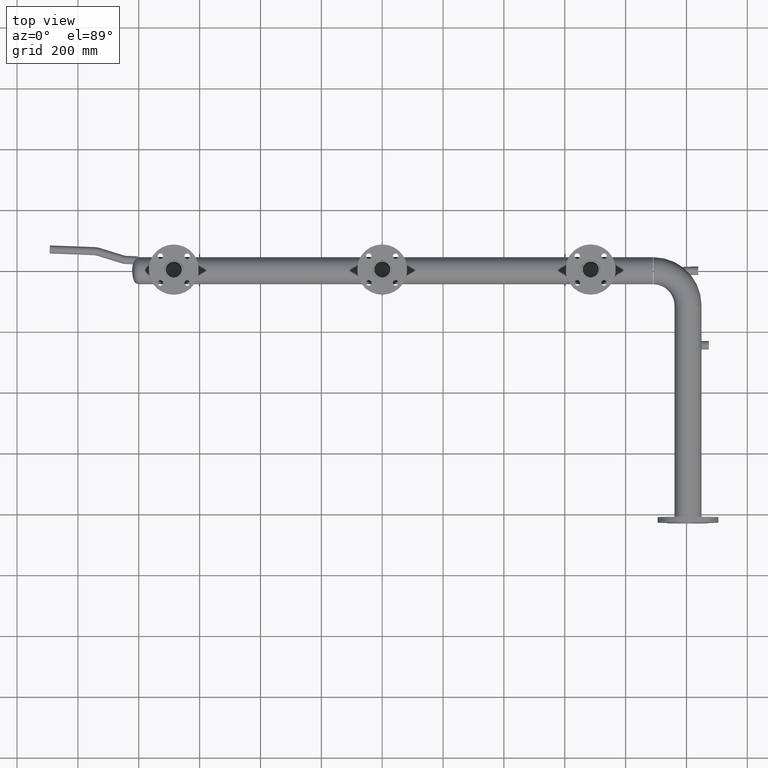
[diagram: clean part render]
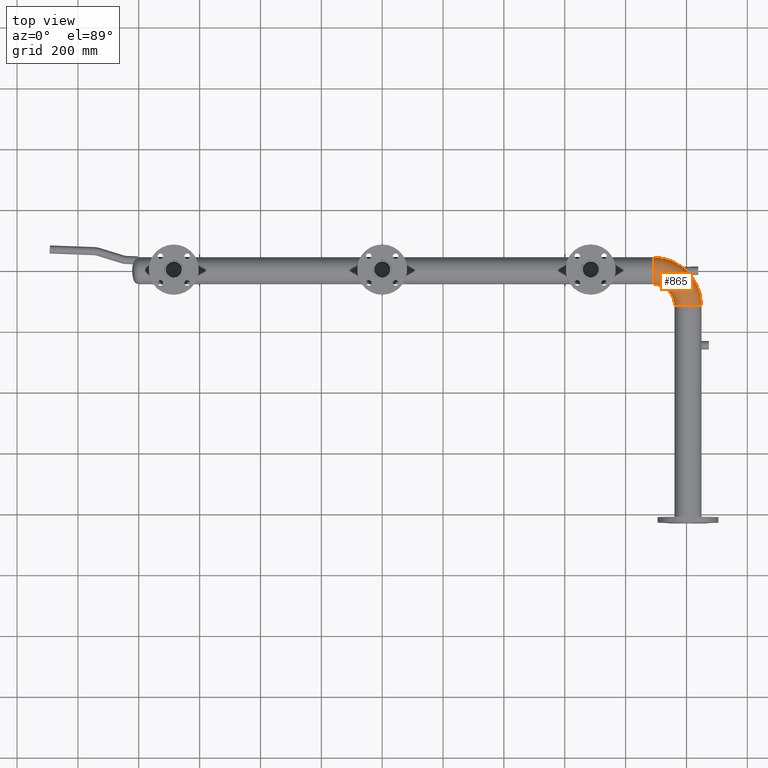
[diagram: same view with one face highlighted and labeled with its STEP entity id]
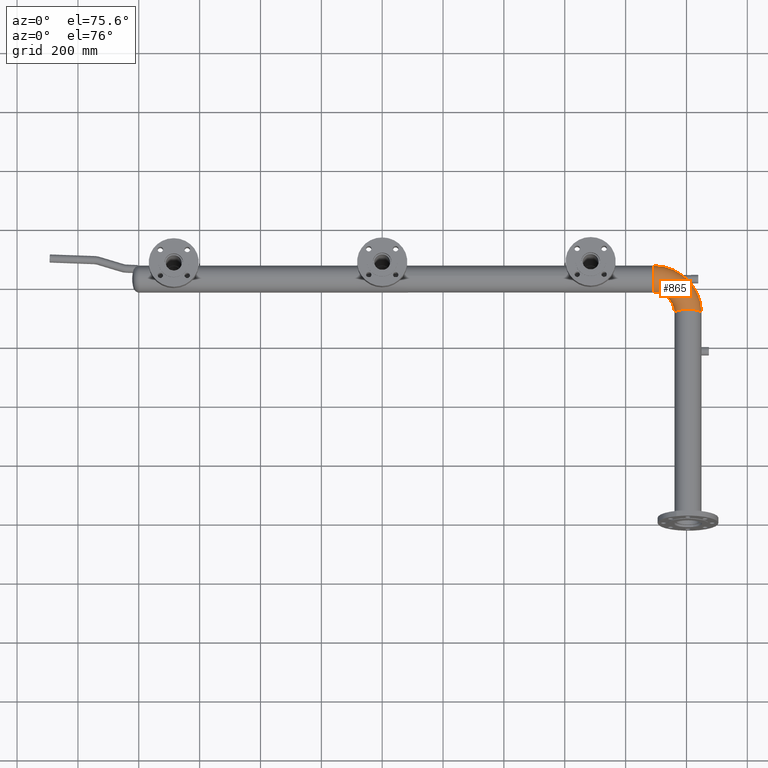
[diagram: same view with one face highlighted and labeled with its STEP entity id]
A machine part, top view. The second image highlights one B-rep face of the part: STEP entity #865.
A second angle (auxiliary view) of the same face is appended — the face is thin or edge-on in the first view.
In plain terms, the highlighted toroidal blend (fillet) surface has major radius 114 mm and minor (blend) radius 44.45 mm.
Its self-contained STEP definition (entity closure, byte-faithful):
#257 = ORIENTED_EDGE ( 'NONE', *, *, #5690, .T. ) ;
#450 = AXIS2_PLACEMENT_3D ( 'NONE', #4883, #3854, #814 ) ;
#542 = CARTESIAN_POINT ( 'NONE',  ( -69.54999999999999716, 2.204635410595379594E-13, -5.443555022209988064E-15 ) ) ;
#567 = CIRCLE ( 'NONE', #5502, 44.45000000000000995 ) ;
#752 = DIRECTION ( 'NONE',  ( 3.169856808907806676E-15, 1.000000000000000000, 0.000000000000000000 ) ) ;
#814 = DIRECTION ( 'NONE',  ( 1.000000000000000000, 0.000000000000000000, 0.000000000000000000 ) ) ;
#865 = ADVANCED_FACE ( 'NONE', ( #2977 ), #5991, .T. ) ;
#884 = CIRCLE ( 'NONE', #450, 69.54999999999999716 ) ;
#998 = VERTEX_POINT ( 'NONE', #542 ) ;
#1051 = DIRECTION ( 'NONE',  ( 1.000000000000000000, 0.000000000000000000, 0.000000000000000000 ) ) ;
#1226 = ORIENTED_EDGE ( 'NONE', *, *, #5584, .T. ) ;
#1273 = AXIS2_PLACEMENT_3D ( 'NONE', #1455, #4041, #2945 ) ;
#1277 = VERTEX_POINT ( 'NONE', #2806 ) ;
#1455 = CARTESIAN_POINT ( 'NONE',  ( 0.000000000000000000, 0.000000000000000000, 0.000000000000000000 ) ) ;
#1656 = AXIS2_PLACEMENT_3D ( 'NONE', #2610, #1051, #5252 ) ;
#1726 = DIRECTION ( 'NONE',  ( 1.000000000000000000, 0.000000000000000000, 0.000000000000000000 ) ) ;
#2091 = CIRCLE ( 'NONE', #1656, 44.45000000000000995 ) ;
#2349 = DIRECTION ( 'NONE',  ( 0.000000000000000000, 0.000000000000000000, -1.000000000000000000 ) ) ;
#2384 = CARTESIAN_POINT ( 'NONE',  ( 0.000000000000000000, 69.54999999999999716, -5.443555022209988064E-15 ) ) ;
#2417 = CARTESIAN_POINT ( 'NONE',  ( -114.0000000000000000, 3.613636762154899974E-13, 0.000000000000000000 ) ) ;
#2610 = CARTESIAN_POINT ( 'NONE',  ( 0.000000000000000000, 114.0000000000000000, 0.000000000000000000 ) ) ;
#2806 = CARTESIAN_POINT ( 'NONE',  ( 0.000000000000000000, 158.4500000000000171, 0.000000000000000000 ) ) ;
#2890 = CIRCLE ( 'NONE', #4701, 158.4500000000000171 ) ;
#2935 = EDGE_CURVE ( 'NONE', #1277, #5021, #2890, .T. ) ;
#2945 = DIRECTION ( 'NONE',  ( 1.000000000000000000, 0.000000000000000000, 0.000000000000000000 ) ) ;
#2977 = FACE_OUTER_BOUND ( 'NONE', #4199, .T. ) ;
#3302 = CARTESIAN_POINT ( 'NONE',  ( 0.000000000000000000, 0.000000000000000000, 0.000000000000000000 ) ) ;
#3854 = DIRECTION ( 'NONE',  ( 0.000000000000000000, 0.000000000000000000, 1.000000000000000000 ) ) ;
#4041 = DIRECTION ( 'NONE',  ( 0.000000000000000000, 0.000000000000000000, 1.000000000000000000 ) ) ;
#4148 = EDGE_CURVE ( 'NONE', #5671, #1277, #2091, .T. ) ;
#4199 = EDGE_LOOP ( 'NONE', ( #6418, #5328, #257, #1226 ) ) ;
#4701 = AXIS2_PLACEMENT_3D ( 'NONE', #3302, #5781, #1726 ) ;
#4883 = CARTESIAN_POINT ( 'NONE',  ( 0.000000000000000000, 0.000000000000000000, -5.443555022209986486E-15 ) ) ;
#5021 = VERTEX_POINT ( 'NONE', #5909 ) ;
#5252 = DIRECTION ( 'NONE',  ( 0.000000000000000000, 0.000000000000000000, -1.000000000000000000 ) ) ;
#5328 = ORIENTED_EDGE ( 'NONE', *, *, #4148, .F. ) ;
#5502 = AXIS2_PLACEMENT_3D ( 'NONE', #2417, #752, #2349 ) ;
#5584 = EDGE_CURVE ( 'NONE', #998, #5021, #567, .T. ) ;
#5671 = VERTEX_POINT ( 'NONE', #2384 ) ;
#5690 = EDGE_CURVE ( 'NONE', #5671, #998, #884, .T. ) ;
#5781 = DIRECTION ( 'NONE',  ( 0.000000000000000000, 0.000000000000000000, 1.000000000000000000 ) ) ;
#5909 = CARTESIAN_POINT ( 'NONE',  ( -158.4500000000000171, 5.022638113714421110E-13, 0.000000000000000000 ) ) ;
#5991 = TOROIDAL_SURFACE ( 'NONE', #1273, 114.0000000000000000, 44.45000000000000995 ) ;
#6418 = ORIENTED_EDGE ( 'NONE', *, *, #2935, .F. ) ;